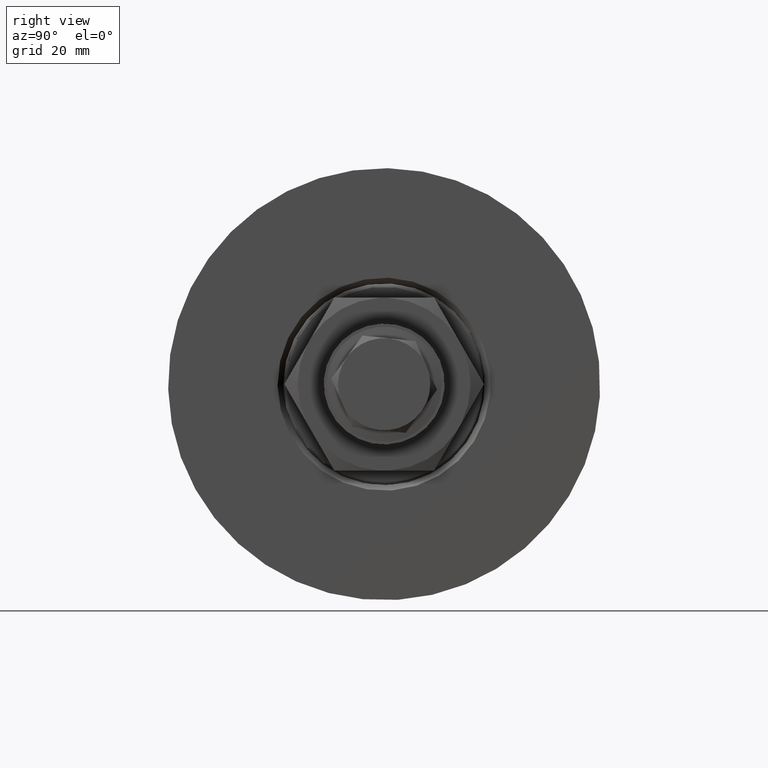
[diagram: clean part render]
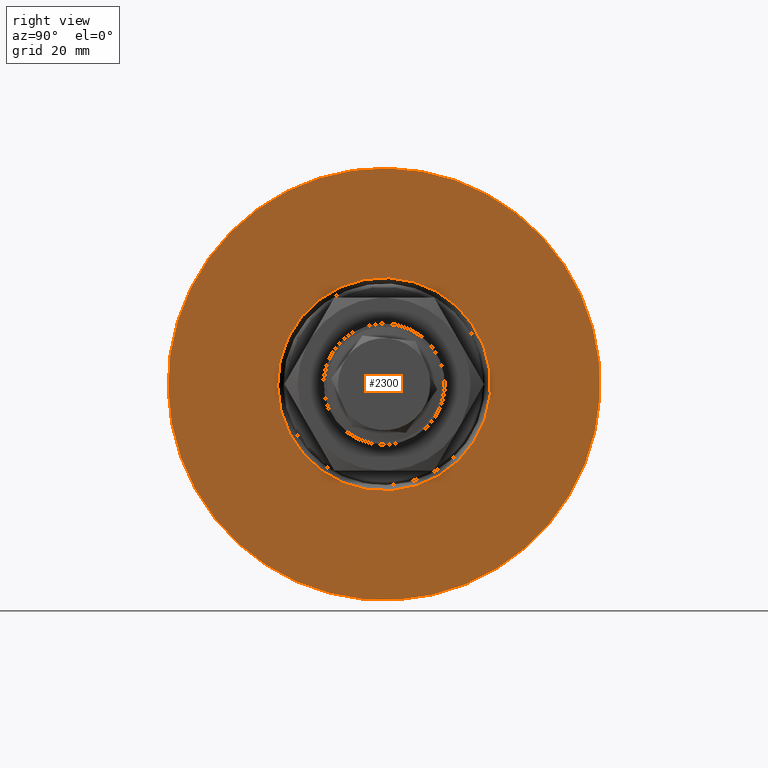
[diagram: same view with one face highlighted and labeled with its STEP entity id]
A machine part, right view. The second image highlights one B-rep face of the part: STEP entity #2300.
In plain terms, the highlighted planar face has unit normal (1, 0, 0).
Its self-contained STEP definition (entity closure, byte-faithful):
#239=FACE_BOUND('',#699,.T.);
#281=PLANE('',#2713);
#555=FACE_OUTER_BOUND('',#698,.T.);
#698=EDGE_LOOP('',(#1758));
#699=EDGE_LOOP('',(#1759));
#864=CIRCLE('',#2710,18.5);
#867=CIRCLE('',#2714,37.5);
#1043=VERTEX_POINT('',#3904);
#1046=VERTEX_POINT('',#3912);
#1310=EDGE_CURVE('',#1043,#1043,#864,.T.);
#1314=EDGE_CURVE('',#1046,#1046,#867,.T.);
#1758=ORIENTED_EDGE('',*,*,#1314,.F.);
#1759=ORIENTED_EDGE('',*,*,#1310,.F.);
#2300=ADVANCED_FACE('',(#555,#239),#281,.T.);
#2710=AXIS2_PLACEMENT_3D('',#3905,#3145,#3146);
#2713=AXIS2_PLACEMENT_3D('',#3911,#3152,#3153);
#2714=AXIS2_PLACEMENT_3D('',#3913,#3154,#3155);
#3145=DIRECTION('center_axis',(-1.,0.,0.));
#3146=DIRECTION('ref_axis',(0.,-1.,0.));
#3152=DIRECTION('center_axis',(-1.,0.,0.));
#3153=DIRECTION('ref_axis',(0.,0.,1.));
#3154=DIRECTION('center_axis',(1.,0.,0.));
#3155=DIRECTION('ref_axis',(0.,1.,0.));
#3904=CARTESIAN_POINT('',(-17.,18.5,-2.2655965784226E-15));
#3905=CARTESIAN_POINT('Origin',(-17.,0.,0.));
#3911=CARTESIAN_POINT('Origin',(-17.,27.5,0.));
#3912=CARTESIAN_POINT('',(-17.,-37.5,-4.59242549680258E-15));
#3913=CARTESIAN_POINT('Origin',(-17.,0.,0.));